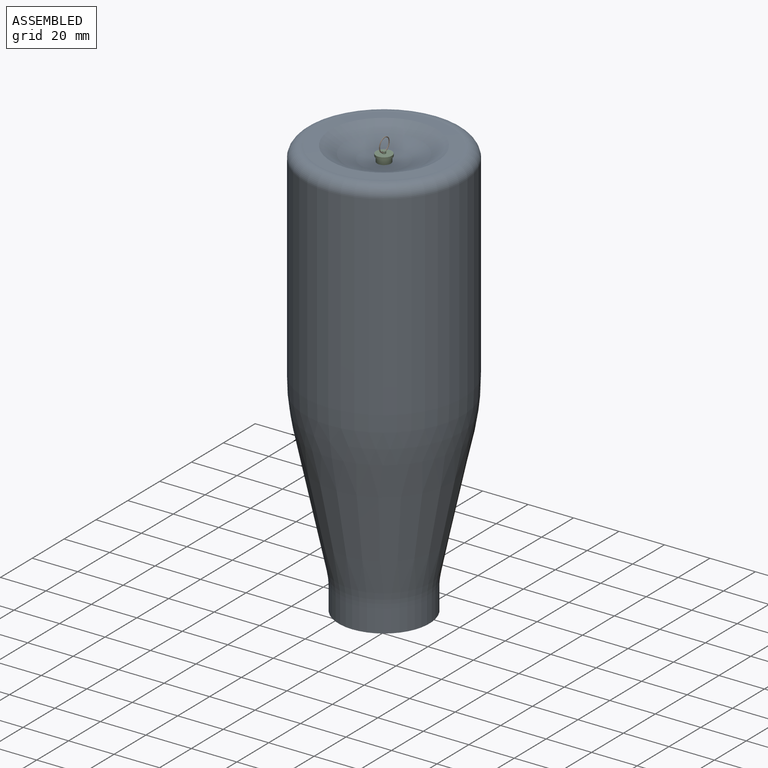
[diagram: assembled view]
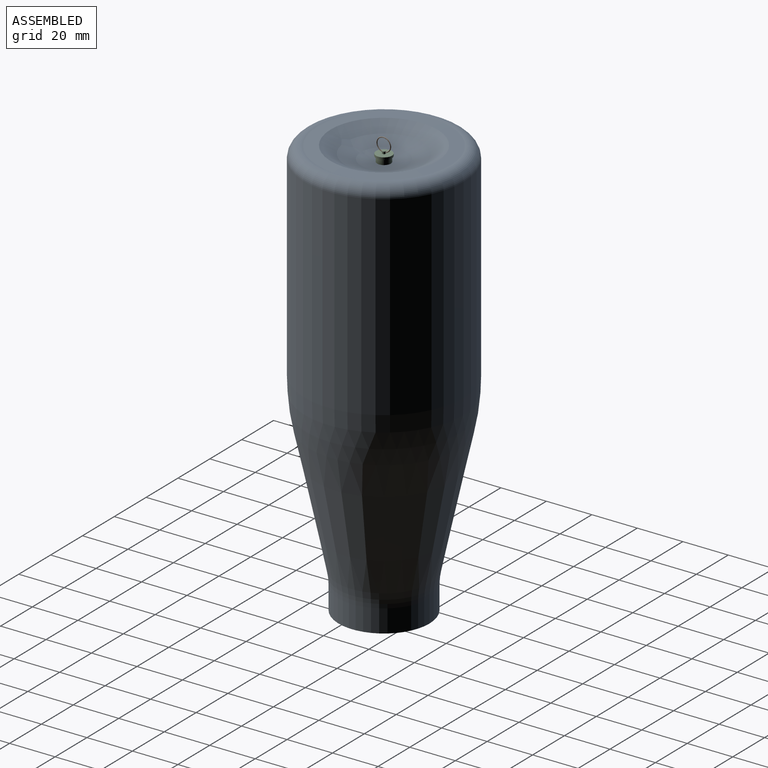
[diagram: assembled view, second angle]
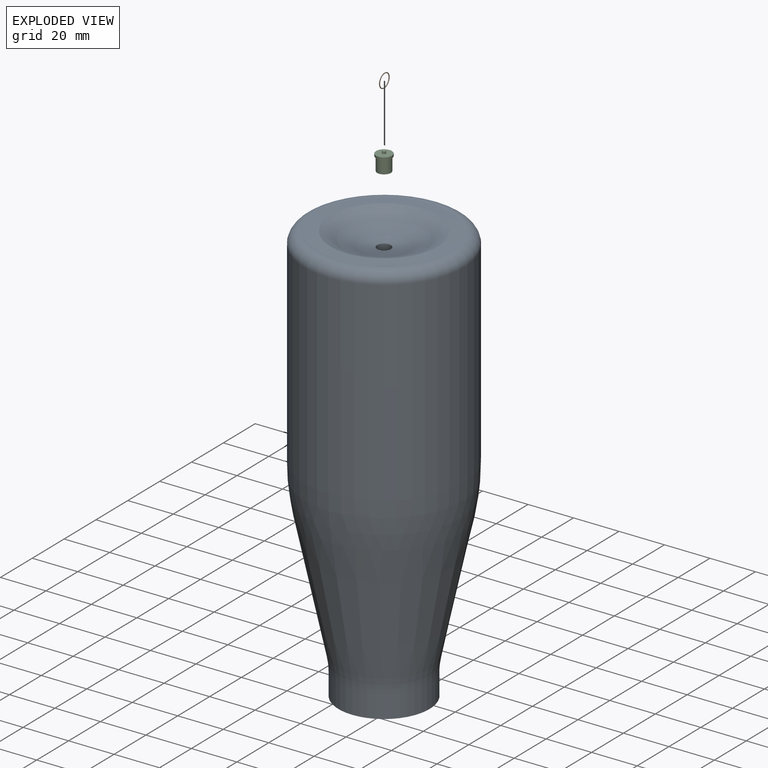
[diagram: exploded view]
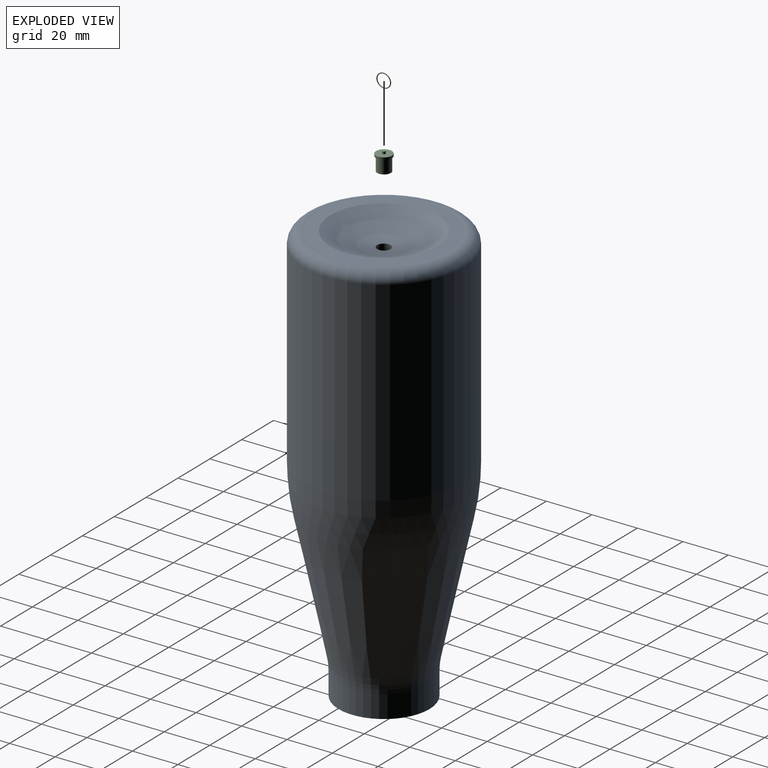
[diagram: exploded view, second angle]
ASSEMBLY  parts=3 mates=2
PART A: 17 faces, bbox 75.8x196.1x75.8 mm
  f0: cylinder r=15mm len=30mm, axis (0,1,0), area 992.4mm2, adj f1,f15
  f1: torus R=45mm, axis (0,1,0), area 605.7mm2, adj f0,f2
  f2: cone r=27.78mm half-angle=12.1deg, axis (0,1,0), area 7891.4mm2, adj f1,f3
  f3: revolved ~60x60mm, area 3880.7mm2, adj f2,f4
  f4: cylinder r=30mm len=80.58mm, axis (0,1,0), area 15188mm2, adj f3,f5
  f5: torus R=25mm, axis (0,1,0), area 1390.8mm2, adj f4,f6
  f6: sphere r=50mm, area 2076.2mm2, adj f5,f16
  f7: sphere r=45mm, area 1837.1mm2, adj f8,f16
  f8: cone r=29.18mm half-angle=87.5deg, axis (0,-1,0), area 946.5mm2, adj f7,f9
  f9: torus R=30mm, axis (0,1,0), area 1791.3mm2, adj f8,f10
  f10: cylinder r=35mm len=85.82mm, axis (0,1,0), area 18873.4mm2, adj f9,f11
  f11: revolved ~70x70mm, area 4543.9mm2, adj f10,f12
  f12: cone r=32.78mm half-angle=12.1deg, axis (0,1,0), area 9707.8mm2, adj f11,f13
  f13: torus R=50mm, axis (0,1,0), area 804.6mm2, adj f12,f14
  f14: cylinder r=20mm len=40mm, axis (0,1,0), area 1256.6mm2, adj f13,f15
  f15: plane 40x40mm, normal (0,-1,0), area 549.8mm2, adj f0,f14
  f16: cylinder r=3mm len=6mm, axis (0,-1,0), area 94.4mm2, adj f6,f7
PART B: 4 faces, bbox 0.4x6.9x6.9 mm
  f0: cylinder r=0.2mm len=1mm, axis (0,1,0), area 0.6mm2, adj f1,f2,f3
  f1: plane 0.4x0.22mm, normal (0,-1,0), area 0mm2, adj f0,f3
  f2: plane 0.4x0.22mm, normal (0,1,0), area 0mm2, adj f0,f3
  f3: torus R=3mm, axis (-1,0,0), area 23.1mm2, adj f0,f1,f2
PART C: 8 faces, bbox 7x7x8 mm
  f0: cylinder r=3mm len=6mm, axis (0,0,-1), area 113.1mm2, adj f1,f4
  f1: plane 6x6mm, normal (0,0,1), area 28.3mm2, adj f0
  f2: cylinder r=3.5mm len=7mm, axis (0,0,1), area 22mm2, adj f3,f4
  f3: plane 7x7mm, normal (0,0,-1), area 36.7mm2, adj f2,f5
  f4: plane 7x7mm, normal (0,0,1), area 10.2mm2, adj f0,f2
  f5: cylinder r=0.75mm len=1.5mm, axis (0,0,1), area 4.3mm2, adj f3,f6,f7
  f6: plane 1.5x1.5mm, normal (0,0,-1), area 1.8mm2, adj f5
  f7: cylinder r=0.25mm len=1.5mm, axis (0,-1,0), area 2.3mm2, adj f5
PLACE A rot(axis=(1,0,0),90deg) t=(-5.07,-8.89,-3.1)mm
PLACE B rot(axis=(0,1,0),2.8deg) t=(-4.92,-8.89,3.77)mm
PLACE C rot(axis=(-1,0,0),180deg) t=(-5.07,-8.89,-0.72)mm
MATE slider C.f0 <-> A.f16  axis (0,0,1) through (-5.07,-8.89,-3.72)mm
MATE revolute B.f0 <-> C.f7  axis (0,1,0) through (-5.07,-8.89,0.78)mm
